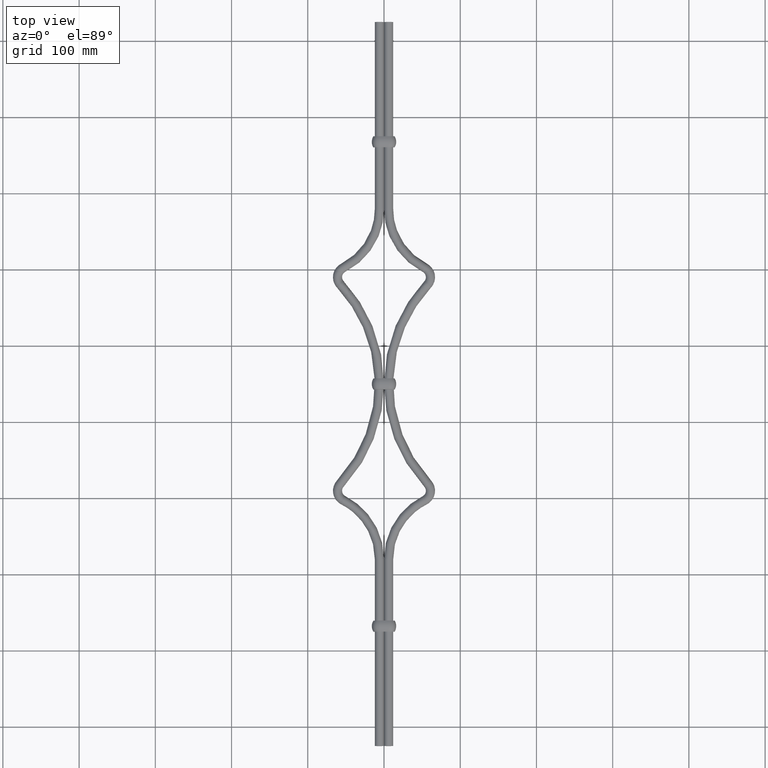
[diagram: clean part render]
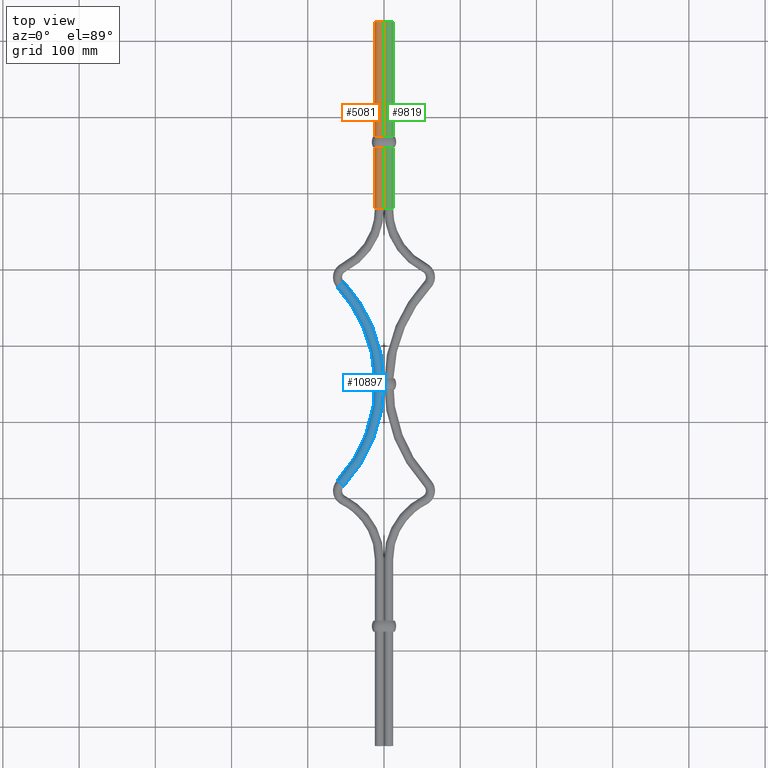
[diagram: same view with three faces highlighted in distinct colors, each labeled with its STEP entity id]
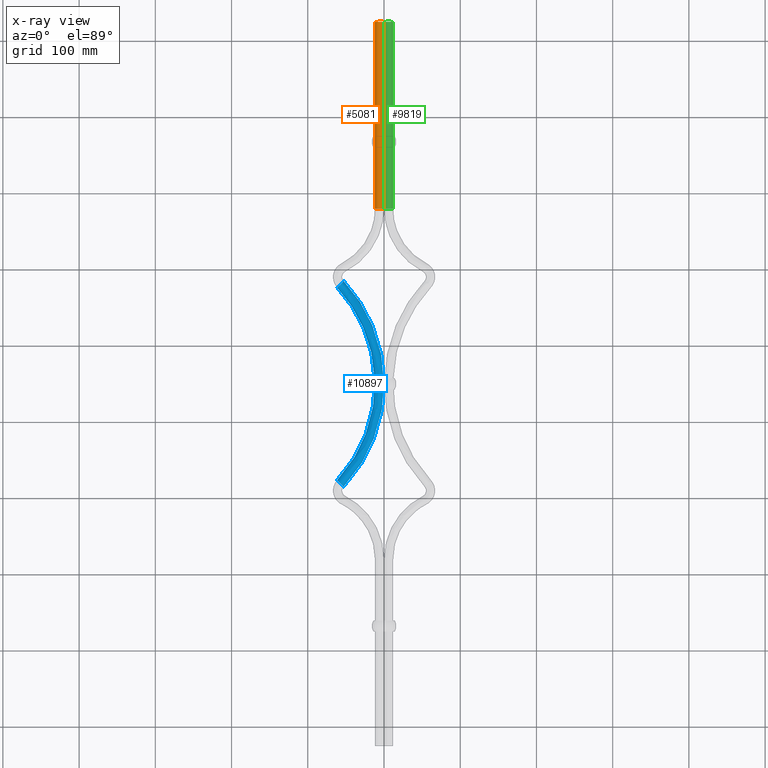
[diagram: x-ray of the same camera — body ghosted, the three highlighted faces saturated]
A machine part, top view with three faces highlighted in distinct colors.
The next image is the same camera in x-ray (body ghosted, the three faces saturated) — at least one of them is partly hidden behind the body in this view.
Their STEP definitions:

[orange] entity #5081 — the highlighted face is a freeform B-spline surface patch.
#69 = CARTESIAN_POINT ( 'NONE',  ( -0.8018740826948004300, 924.9999999999995500, 3.002667020528368500 ) ) ;
#132 = CARTESIAN_POINT ( 'NONE',  ( -5.603826490563096600, 924.9999999999998900, 6.000000000121199100 ) ) ;
#634 = CARTESIAN_POINT ( 'NONE',  ( -11.99974757099841900, 679.9632569764643200, 7.111164825746169200E-016 ) ) ;
#679 = CARTESIAN_POINT ( 'NONE',  ( -0.0002524290098535008600, 925.0367430243752600, 2.367159692549194200E-017 ) ) ;
#901 = CARTESIAN_POINT ( 'NONE',  ( -0.0002524290130245753200, 680.0367430251923200, 11.99999999999999800 ) ) ;
#1113 = B_SPLINE_CURVE_WITH_KNOTS ( 'NONE', 3,
 ( #2579, #2695, #5343, #14458, #6650, #15759, #7962, #69, #9272, #1420, #10581, #2752, #11886, #4089, #13198, #5398, #14519, #6703, #15810, #8022, #132, #9328 ),
 .UNSPECIFIED., .F., .F.,
 ( 4, 2, 2, 2, 2, 2, 2, 2, 2, 2, 4 ),
 ( 0.009381297829866961900, 0.01055294879094569400, 0.01172459975202442800, 0.01231042523256379400, 0.01289625071310316100, 0.01406790167418189500, 0.01523955263526062900, 0.01582537811579999600, 0.01641120359633935900, 0.01758285455741809300, 0.01875450551849682700 ),
 .UNSPECIFIED. ) ;
#1420 = CARTESIAN_POINT ( 'NONE',  ( -1.228277759380461000, 925.0000000000004500, 3.658066584770408400 ) ) ;
#2023 = CARTESIAN_POINT ( 'NONE',  ( -0.0002524290098535007000, 925.0367430243752600, 11.99999999999999800 ) ) ;
#2245 = CARTESIAN_POINT ( 'NONE',  ( -11.99974757099841900, 679.9632569764643200, 7.111164825746169200E-016 ) ) ;
#2488 = CARTESIAN_POINT ( 'NONE',  ( -6.000000001837878300, 925.0000000000000000, 6.000000000000000000 ) ) ;
#2579 = CARTESIAN_POINT ( 'NONE',  ( -0.0002524290098539763900, 924.9999999999994300, 2.367159692549194200E-017 ) ) ;
#2695 = CARTESIAN_POINT ( 'NONE',  ( -0.0002524290098539819700, 924.9999999999995500, 0.3910925129396046800 ) ) ;
#2752 = CARTESIAN_POINT ( 'NONE',  ( -2.035580899030228900, 925.0000000000001100, 4.520919682191352400 ) ) ;
#3231 = EDGE_CURVE ( 'NONE', #5649, #10593, #14196, .T. ) ;
#3338 = CARTESIAN_POINT ( 'NONE',  ( -11.99974757099505100, 924.9632569756472500, 11.99999999999999800 ) ) ;
#3467 = CARTESIAN_POINT ( 'NONE',  ( -0.0002524290098539763900, 924.9999999999994300, 2.367159692549194200E-017 ) ) ;
#3577 = CARTESIAN_POINT ( 'NONE',  ( -0.0002524290130245753700, 680.0367430251923200, 2.367159692549194200E-017 ) ) ;
#3752 = EDGE_LOOP ( 'NONE', ( #10199, #11716, #3901, #7473, #6541 ) ) ;
#3788 =( BOUNDED_CURVE ( )  B_SPLINE_CURVE ( 3, ( #9012, #16772, #10314, #2488 ),
 .UNSPECIFIED., .F., .T. ) 
 B_SPLINE_CURVE_WITH_KNOTS ( ( 4, 4 ),
 ( 0.5000000000000000000, 0.7499999999617614800 ),
 .UNSPECIFIED. ) 
 CURVE ( )  GEOMETRIC_REPRESENTATION_ITEM ( )  RATIONAL_B_SPLINE_CURVE ( ( 1.000000000000000000, 0.6666666667176514000, 0.5000000000509847700, 0.5000000000000000000 ) ) 
 REPRESENTATION_ITEM ( '' )  );
#3901 = ORIENTED_EDGE ( 'NONE', *, *, #12361, .T. ) ;
#4089 = CARTESIAN_POINT ( 'NONE',  ( -2.826105504082181900, 924.9999999999992000, 5.095458613719340900 ) ) ;
#4679 = CARTESIAN_POINT ( 'NONE',  ( -11.99974757099524700, 924.9632569756471400, 7.111164825746169200E-016 ) ) ;
#4725 = CARTESIAN_POINT ( 'NONE',  ( -0.0002524290130245753700, 680.0367430251923200, 2.367159692549194200E-017 ) ) ;
#5081 = ADVANCED_FACE ( 'NONE', ( #13244 ), #16796, .F. ) ;
#5214 = VERTEX_POINT ( 'NONE', #3467 ) ;
#5343 = CARTESIAN_POINT ( 'NONE',  ( -0.03935417340218781700, 925.0000000000003400, 0.7883069095250839800 ) ) ;
#5398 = CARTESIAN_POINT ( 'NONE',  ( -3.340657888501804800, 924.9999999999997700, 5.382006132571249600 ) ) ;
#5454 = VERTEX_POINT ( 'NONE', #16535 ) ;
#5566 = CARTESIAN_POINT ( 'NONE',  ( -0.0002524290130245753700, 680.0367430251923200, 2.367159692549194200E-017 ) ) ;
#5649 = VERTEX_POINT ( 'NONE', #14790 ) ;
#6541 = ORIENTED_EDGE ( 'NONE', *, *, #13419, .F. ) ;
#6650 = CARTESIAN_POINT ( 'NONE',  ( -0.3059250607655726900, 924.9999999999996600, 1.931086156765894600 ) ) ;
#6703 = CARTESIAN_POINT ( 'NONE',  ( -4.065424889978992900, 925.0000000000002300, 5.693138748843133500 ) ) ;
#6863 = DIRECTION ( 'NONE',  ( 1.294316128202522400E-014, 1.000000000000000000, 0.0000000000000000000 ) ) ;
#7186 = DIRECTION ( 'NONE',  ( 1.294316128202522400E-014, 1.000000000000000000, 0.0000000000000000000 ) ) ;
#7473 = ORIENTED_EDGE ( 'NONE', *, *, #15148, .T. ) ;
#7793 = LINE ( 'NONE', #5566, #14324 ) ;
#7962 = CARTESIAN_POINT ( 'NONE',  ( -0.6161440759821570400, 924.9999999999994300, 2.655268779871856800 ) ) ;
#8022 = CARTESIAN_POINT ( 'NONE',  ( -5.207383170953133500, 924.9999999999997700, 5.960297361204097500 ) ) ;
#8032 = LINE ( 'NONE', #634, #14954 ) ;
#8752 = CARTESIAN_POINT ( 'NONE',  ( -11.99974757099524700, 924.9632569756471400, 7.111164825746169200E-016 ) ) ;
#9012 = CARTESIAN_POINT ( 'NONE',  ( -11.99974757099524700, 924.9632569756471400, 7.111164825746169200E-016 ) ) ;
#9272 = CARTESIAN_POINT ( 'NONE',  ( -0.9026694543128579400, 925.0000000000003400, 3.170679733321863000 ) ) ;
#9328 = CARTESIAN_POINT ( 'NONE',  ( -6.000000001837878300, 925.0000000000000000, 6.000000000000000000 ) ) ;
#9854 = CARTESIAN_POINT ( 'NONE',  ( -0.0002524290130245752700, 680.0367430251924400, 11.99999999999999800 ) ) ;
#10072 = CARTESIAN_POINT ( 'NONE',  ( -11.99974757099822200, 679.9632569764643200, 11.99999999999999800 ) ) ;
#10199 = ORIENTED_EDGE ( 'NONE', *, *, #10833, .F. ) ;
#10314 = CARTESIAN_POINT ( 'NONE',  ( -9.999831714813334200, 924.9755046504302500, 5.999999998776367200 ) ) ;
#10581 = CARTESIAN_POINT ( 'NONE',  ( -1.476086382926634900, 924.9999999999998900, 3.960951846602040100 ) ) ;
#10593 = VERTEX_POINT ( 'NONE', #4725 ) ;
#10833 = EDGE_CURVE ( 'NONE', #5649, #13234, #8032, .T. ) ;
#11165 = CARTESIAN_POINT ( 'NONE',  ( -11.99974757099822200, 679.9632569764643200, 11.99999999999999800 ) ) ;
#11716 = ORIENTED_EDGE ( 'NONE', *, *, #3231, .T. ) ;
#11886 = CARTESIAN_POINT ( 'NONE',  ( -2.339094564643061000, 924.9999999999993200, 4.769617736019934100 ) ) ;
#12361 = EDGE_CURVE ( 'NONE', #10593, #5214, #7793, .T. ) ;
#12480 = CARTESIAN_POINT ( 'NONE',  ( -11.99974757099841900, 679.9632569764643200, 7.111164825746169200E-016 ) ) ;
#13198 = CARTESIAN_POINT ( 'NONE',  ( -2.993904812738335000, 924.9999999999998900, 5.196279139165371300 ) ) ;
#13234 = VERTEX_POINT ( 'NONE', #8752 ) ;
#13244 = FACE_OUTER_BOUND ( 'NONE', #3752, .T. ) ;
#13419 = EDGE_CURVE ( 'NONE', #13234, #5454, #3788, .T. ) ;
#14196 =( BOUNDED_CURVE ( )  B_SPLINE_CURVE ( 3, ( #2245, #10072, #901, #3577 ),
 .UNSPECIFIED., .F., .F. ) 
 B_SPLINE_CURVE_WITH_KNOTS ( ( 4, 4 ),
 ( 0.5000000000000000000, 1.000000000000000000 ),
 .UNSPECIFIED. ) 
 CURVE ( )  GEOMETRIC_REPRESENTATION_ITEM ( )  RATIONAL_B_SPLINE_CURVE ( ( 1.000000000000000000, 0.3333333333333333700, 0.3333333333333333700, 1.000000000000000000 ) ) 
 REPRESENTATION_ITEM ( '' )  );
#14324 = VECTOR ( 'NONE', #6863, 1000.000000000000000 ) ;
#14458 = CARTESIAN_POINT ( 'NONE',  ( -0.1926209828681821600, 925.0000000000000000, 1.557314091320363100 ) ) ;
#14519 = CARTESIAN_POINT ( 'NONE',  ( -3.520413067001568300, 924.9999999999997700, 5.467157617879641900 ) ) ;
#14790 = CARTESIAN_POINT ( 'NONE',  ( -11.99974757099841900, 679.9632569764643200, 7.111164825746169200E-016 ) ) ;
#14954 = VECTOR ( 'NONE', #7186, 1000.000000000000000 ) ;
#15034 = CARTESIAN_POINT ( 'NONE',  ( -0.0002524290130245753700, 680.0367430251923200, 2.367159692549194200E-017 ) ) ;
#15148 = EDGE_CURVE ( 'NONE', #5214, #5454, #1113, .T. ) ;
#15759 = CARTESIAN_POINT ( 'NONE',  ( -0.5312070166993970700, 925.0000000000001100, 2.475553369981862200 ) ) ;
#15810 = CARTESIAN_POINT ( 'NONE',  ( -4.439204968891394800, 924.9999999999998900, 5.806647295631781200 ) ) ;
#16535 = CARTESIAN_POINT ( 'NONE',  ( -6.000000001837878300, 925.0000000000000000, 6.000000000000000000 ) ) ;
#16772 = CARTESIAN_POINT ( 'NONE',  ( -11.99974757099519700, 924.9632569756473700, 2.999999999311707500 ) ) ;
#16796 =( BOUNDED_SURFACE ( )  B_SPLINE_SURFACE ( 3, 1, ( 
 ( #15034, #679 ),
 ( #9854, #2023 ),
 ( #11165, #3338 ),
 ( #12480, #4679 ) ),
 .UNSPECIFIED., .F., .F., .F. ) 
 B_SPLINE_SURFACE_WITH_KNOTS ( ( 4, 4 ),
 ( 2, 2 ),
 ( 0.0000000000000000000, 0.5000000000000000000 ),
 ( 0.0000000000000000000, 1.000000000000000000 ),
 .UNSPECIFIED. ) 
 GEOMETRIC_REPRESENTATION_ITEM ( )  RATIONAL_B_SPLINE_SURFACE ( (
 ( 1.000000000000000000, 1.000000000000000000),
 ( 0.3333333333333333700, 0.3333333333333333700),
 ( 0.3333333333333333700, 0.3333333333333333700),
 ( 1.000000000000000000, 1.000000000000000000) ) ) 
 REPRESENTATION_ITEM ( '' )  SURFACE ( )  );

[blue] entity #10897 — the highlighted face is a freeform B-spline surface patch.
#66 = VERTEX_POINT ( 'NONE', #7697 ) ;
#593 = CARTESIAN_POINT ( 'NONE',  ( -61.51209363841103100, 323.6071027101809800, 8.527070651964222600E-016 ) ) ;
#808 = CARTESIAN_POINT ( 'NONE',  ( 0.7264480903153978100, 469.2528909035907500, -2.098366060659508300E-016 ) ) ;
#861 = CARTESIAN_POINT ( 'NONE',  ( -44.64045133958273900, 575.8333569275644100, 11.99999999999999800 ) ) ;
#870 = ORIENTED_EDGE ( 'NONE', *, *, #3465, .F. ) ;
#920 = CARTESIAN_POINT ( 'NONE',  ( -53.36329301263781800, 332.4079988166307700, 8.804558837373509700E-016 ) ) ;
#994 = CARTESIAN_POINT ( 'NONE',  ( -11.97957841236076400, 426.7468950949819400, -11.99999999999999500 ) ) ;
#1048 = CARTESIAN_POINT ( 'NONE',  ( -26.79080804273676700, 552.2787874388691300, -11.99999999999999600 ) ) ;
#1214 = CARTESIAN_POINT ( 'NONE',  ( -8.442573845707416400, 512.6095959258960900, 1.493061584562548500E-016 ) ) ;
#2142 = CARTESIAN_POINT ( 'NONE',  ( -26.37292626719997600, 551.8261421891685400, -5.807620071598787500E-017 ) ) ;
#2201 = CARTESIAN_POINT ( 'NONE',  ( -61.51209363841105900, 323.6071027101810400, 11.99999999999999800 ) ) ;
#2264 = CARTESIAN_POINT ( 'NONE',  ( -21.27770817372944000, 387.6578271474177200, 1.014396028284849700E-015 ) ) ;
#2324 = CARTESIAN_POINT ( 'NONE',  ( -19.84558817756086700, 508.6999772347203900, -11.99999999999999800 ) ) ;
#2377 = CARTESIAN_POINT ( 'NONE',  ( -52.76431385044410400, 584.6073192840664200, -11.99999999999999800 ) ) ;
#2546 = CARTESIAN_POINT ( 'NONE',  ( -43.79093532513777400, 574.9158596752388300, -2.546810199468553700E-016 ) ) ;
#2573 = VERTEX_POINT ( 'NONE', #14645 ) ;
#2614 = B_SPLINE_CURVE_WITH_KNOTS ( 'NONE', 3,
 ( #11634, #10317, #15555, #7750, #16830, #9071, #1214, #10375, #2546, #11686 ),
 .UNSPECIFIED., .F., .F.,
 ( 4, 1, 1, 1, 1, 1, 1, 4 ),
 ( 0.0000000000000000000, 0.1318829667767272600, 0.2714696696032917700, 0.4162189895839139600, 0.5629400453226535200, 0.7149689085676744800, 0.8616493475476620900, 1.000000000000000000 ),
 .UNSPECIFIED. ) ;
#3252 = CARTESIAN_POINT ( 'NONE',  ( -37.89342209827678700, 352.7839930978241200, 6.658742474111414600E-016 ) ) ;
#3465 = EDGE_CURVE ( 'NONE', #5816, #66, #11820, .T. ) ;
#3480 = CARTESIAN_POINT ( 'NONE',  ( -52.76431385044418900, 584.6073192840663100, -2.546810199468553700E-016 ) ) ;
#3505 = ORIENTED_EDGE ( 'NONE', *, *, #12691, .F. ) ;
#3541 = CARTESIAN_POINT ( 'NONE',  ( -37.69453535950715000, 352.9993958240679600, 11.99999999999999800 ) ) ;
#3571 = CARTESIAN_POINT ( 'NONE',  ( -61.51209363841103100, 323.6071027101809800, 8.527070651964222600E-016 ) ) ;
#3597 = CARTESIAN_POINT ( 'NONE',  ( -11.32122275055797700, 468.0799790530458600, 9.446246855534020000E-016 ) ) ;
#3657 = CARTESIAN_POINT ( 'NONE',  ( -52.53871511310453700, 566.7014376809919400, -11.99999999999999800 ) ) ;
#3719 = CARTESIAN_POINT ( 'NONE',  ( -44.21044338438537800, 324.6310617657428600, -1.456678042497336600E-016 ) ) ;
#4483 = ORIENTED_EDGE ( 'NONE', *, *, #7183, .T. ) ;
#4585 = CARTESIAN_POINT ( 'NONE',  ( -11.96796888191325800, 426.7682406384950600, 7.434499653221958300E-016 ) ) ;
#4803 = CARTESIAN_POINT ( 'NONE',  ( -45.02058306495653300, 323.7560918790249500, 11.99999999999999800 ) ) ;
#4860 = CARTESIAN_POINT ( 'NONE',  ( -11.95635935146578400, 426.7895861820080700, 11.99999999999999500 ) ) ;
#4920 = CARTESIAN_POINT ( 'NONE',  ( -36.81112897796420900, 545.6727808818102400, 7.928642802028406400E-016 ) ) ;
#4979 = CARTESIAN_POINT ( 'NONE',  ( -52.76431385044416800, 315.3926807159342000, -11.99999999999999800 ) ) ;
#4990 = CARTESIAN_POINT ( 'NONE',  ( -52.76431385044418900, 584.6073192840663100, -2.546810199468553700E-016 ) ) ;
#5036 = CARTESIAN_POINT ( 'NONE',  ( -9.904187492016657000, 383.5850978585266400, -2.796079487945893200E-016 ) ) ;
#5816 = VERTEX_POINT ( 'NONE', #3571 ) ;
#5827 = CARTESIAN_POINT ( 'NONE',  ( -52.76431385044421100, 315.3926807159342600, -1.179189857088026500E-016 ) ) ;
#5895 = CARTESIAN_POINT ( 'NONE',  ( -19.90427847964116700, 508.7658679843466400, 5.854819210369115600E-016 ) ) ;
#6108 = CARTESIAN_POINT ( 'NONE',  ( -10.01580799462189300, 383.4600077647600100, 11.99999999999999600 ) ) ;
#6171 = CARTESIAN_POINT ( 'NONE',  ( -19.96296878172156000, 508.8317587339724400, 11.99999999999999800 ) ) ;
#6220 = CARTESIAN_POINT ( 'NONE',  ( -61.51209363841098800, 576.3928972898194200, 9.894690994338144600E-016 ) ) ;
#6277 = CARTESIAN_POINT ( 'NONE',  ( -27.92686689059231100, 346.0969892963714800, -11.99999999999999800 ) ) ;
#6334 = CARTESIAN_POINT ( 'NONE',  ( 0.7264480903153978100, 469.2528909035907500, -2.098366060659508300E-016 ) ) ;
#6616 = CARTESIAN_POINT ( 'NONE',  ( -52.76431385044410400, 584.6073192840664200, 11.99999999999999800 ) ) ;
#7183 = EDGE_CURVE ( 'NONE', #2573, #8695, #2614, .T. ) ;
#7192 = CARTESIAN_POINT ( 'NONE',  ( -52.96347312032709500, 567.1601863071548500, 9.894690994338144600E-016 ) ) ;
#7212 =( BOUNDED_CURVE ( )  B_SPLINE_CURVE ( 3, ( #5827, #13623, #16220, #8442 ),
 .UNSPECIFIED., .F., .T. ) 
 B_SPLINE_CURVE_WITH_KNOTS ( ( 4, 4 ),
 ( 0.0000000000000000000, 0.5000000000000000000 ),
 .UNSPECIFIED. ) 
 CURVE ( )  GEOMETRIC_REPRESENTATION_ITEM ( )  RATIONAL_B_SPLINE_CURVE ( ( 1.000000000000000000, 0.3333333333333333700, 0.3333333333333333700, 1.000000000000000000 ) ) 
 REPRESENTATION_ITEM ( '' )  );
#7241 = CARTESIAN_POINT ( 'NONE',  ( -44.21044338438537800, 324.6310617657428600, -1.456678042497336600E-016 ) ) ;
#7360 = CARTESIAN_POINT ( 'NONE',  ( -27.52909341305311800, 346.5277947488592100, 6.891383207554926800E-017 ) ) ;
#7413 = CARTESIAN_POINT ( 'NONE',  ( 0.7489526308204539400, 469.2095557150217400, 12.00000000000000400 ) ) ;
#7471 = CARTESIAN_POINT ( 'NONE',  ( -53.38823112754960200, 567.6189349333177500, 11.99999999999999800 ) ) ;
#7523 = CARTESIAN_POINT ( 'NONE',  ( -52.95822317235221300, 332.8454837599896900, -11.99999999999999800 ) ) ;
#7590 = CARTESIAN_POINT ( 'NONE',  ( 0.01487048980433866900, 425.2228951193138800, -11.99999999999999500 ) ) ;
#7637 = CARTESIAN_POINT ( 'NONE',  ( -26.37292626719997600, 551.8261421891685400, -5.807620071598787500E-017 ) ) ;
#7697 = CARTESIAN_POINT ( 'NONE',  ( -61.51209363841098800, 576.3928972898194200, 9.894690994338144600E-016 ) ) ;
#7750 = CARTESIAN_POINT ( 'NONE',  ( -9.904187492016657000, 383.5850978585266400, -2.796079487945893200E-016 ) ) ;
#8442 = CARTESIAN_POINT ( 'NONE',  ( -61.51209363841103100, 323.6071027101809800, 8.527070651964222600E-016 ) ) ;
#8662 = CARTESIAN_POINT ( 'NONE',  ( 0.03808955069929369900, 425.2655862063400000, -8.661885838623813200E-018 ) ) ;
#8695 = VERTEX_POINT ( 'NONE', #4990 ) ;
#8720 = CARTESIAN_POINT ( 'NONE',  ( -25.95504449166316300, 551.3734969394684000, 11.99999999999999600 ) ) ;
#8785 = CARTESIAN_POINT ( 'NONE',  ( -61.51209363841105900, 323.6071027101809800, 8.804558837373509700E-016 ) ) ;
#8838 = CARTESIAN_POINT ( 'NONE',  ( -21.22189792242680500, 387.7203721943009800, -11.99999999999999600 ) ) ;
#8893 = CARTESIAN_POINT ( 'NONE',  ( -8.325193241546749300, 512.4778144266439300, -11.99999999999999800 ) ) ;
#8954 = CARTESIAN_POINT ( 'NONE',  ( -52.76431385044418900, 584.6073192840663100, -2.546810199468553700E-016 ) ) ;
#9071 = CARTESIAN_POINT ( 'NONE',  ( 0.7264480903153978100, 469.2528909035907500, -2.098366060659508300E-016 ) ) ;
#9507 = EDGE_LOOP ( 'NONE', ( #870, #3505, #4483, #11404 ) ) ;
#9980 = CARTESIAN_POINT ( 'NONE',  ( -8.442573845707416400, 512.6095959258960900, 1.493061584562548500E-016 ) ) ;
#10035 = CARTESIAN_POINT ( 'NONE',  ( -52.76431385044410400, 584.6073192840664200, 11.99999999999999800 ) ) ;
#10088 = CARTESIAN_POINT ( 'NONE',  ( -37.89342209827678700, 352.7839930978241200, 6.658742474111414600E-016 ) ) ;
#10142 = CARTESIAN_POINT ( 'NONE',  ( -11.33247502081054800, 468.1016466473304300, -12.00000000000000400 ) ) ;
#10206 = CARTESIAN_POINT ( 'NONE',  ( -42.94141931069263800, 573.9983624229132600, -11.99999999999999800 ) ) ;
#10279 = EDGE_CURVE ( 'NONE', #66, #8695, #14239, .T. ) ;
#10317 = CARTESIAN_POINT ( 'NONE',  ( -44.21044338438537800, 324.6310617657428600, -1.456678042497336600E-016 ) ) ;
#10375 = CARTESIAN_POINT ( 'NONE',  ( -26.37292626719997600, 551.8261421891685400, -5.807620071598787500E-017 ) ) ;
#10897 = ADVANCED_FACE ( 'NONE', ( #14150 ), #14959, .F. ) ;
#11081 = CARTESIAN_POINT ( 'NONE',  ( -53.36329301263781800, 332.4079988166307700, 8.804558837373509700E-016 ) ) ;
#11291 = CARTESIAN_POINT ( 'NONE',  ( -43.79093532513777400, 574.9158596752388300, -2.546810199468553700E-016 ) ) ;
#11346 = CARTESIAN_POINT ( 'NONE',  ( -53.76836285292343100, 331.9705138732717800, 11.99999999999999800 ) ) ;
#11402 = CARTESIAN_POINT ( 'NONE',  ( -11.96796888191325600, 426.7682406384950600, 7.434499653221958300E-016 ) ) ;
#11404 = ORIENTED_EDGE ( 'NONE', *, *, #10279, .F. ) ;
#11464 = CARTESIAN_POINT ( 'NONE',  ( -37.02006986573260100, 545.8991035066603700, -11.99999999999999600 ) ) ;
#11522 = CARTESIAN_POINT ( 'NONE',  ( -52.76431385044422500, 315.3926807159342000, -1.456678042497336600E-016 ) ) ;
#11634 = CARTESIAN_POINT ( 'NONE',  ( -52.76431385044421100, 315.3926807159342600, -1.179189857088026500E-016 ) ) ;
#11686 = CARTESIAN_POINT ( 'NONE',  ( -52.76431385044418900, 584.6073192840663100, -2.546810199468553700E-016 ) ) ;
#11820 = B_SPLINE_CURVE_WITH_KNOTS ( 'NONE', 3,
 ( #593, #11081, #3252, #12379, #4585, #13693, #5895, #14996, #7192, #16285 ),
 .UNSPECIFIED., .F., .F.,
 ( 4, 1, 1, 1, 1, 1, 1, 4 ),
 ( 0.0000000000000000000, 0.1318829667767272600, 0.2714696696032917700, 0.4162189895839139600, 0.5629400453226535200, 0.7149689085676744800, 0.8616493475476620900, 1.000000000000000000 ),
 .UNSPECIFIED. ) ;
#12379 = CARTESIAN_POINT ( 'NONE',  ( -21.27770817372944000, 387.6578271474177200, 1.014396028284849700E-015 ) ) ;
#12597 = CARTESIAN_POINT ( 'NONE',  ( -52.76431385044416800, 315.3926807159342000, 11.99999999999999800 ) ) ;
#12660 = CARTESIAN_POINT ( 'NONE',  ( -21.33351842503211100, 387.5952821005344000, 11.99999999999999600 ) ) ;
#12691 = EDGE_CURVE ( 'NONE', #2573, #5816, #7212, .T. ) ;
#12713 = CARTESIAN_POINT ( 'NONE',  ( -19.90427847964116700, 508.7658679843466400, 5.854819210369115600E-016 ) ) ;
#12771 = CARTESIAN_POINT ( 'NONE',  ( -61.51209363841095300, 576.3928972898195300, -11.99999999999999800 ) ) ;
#12824 = CARTESIAN_POINT ( 'NONE',  ( -27.52909341305311800, 346.5277947488592100, 6.891383207554926800E-017 ) ) ;
#12930 = CARTESIAN_POINT ( 'NONE',  ( -61.51209363841097400, 576.3928972898194200, 11.99999999999999800 ) ) ;
#13109 = CARTESIAN_POINT ( 'NONE',  ( -61.51209363841098800, 576.3928972898194200, 9.894690994338144600E-016 ) ) ;
#13623 = CARTESIAN_POINT ( 'NONE',  ( -52.76431385044418200, 315.3926807159342000, 11.99999999999999800 ) ) ;
#13693 = CARTESIAN_POINT ( 'NONE',  ( -11.32122275055797700, 468.0799790530458600, 9.446246855534020000E-016 ) ) ;
#13910 = CARTESIAN_POINT ( 'NONE',  ( -27.13131993551387200, 346.9586002013469400, 11.99999999999999800 ) ) ;
#13965 = CARTESIAN_POINT ( 'NONE',  ( -11.30997048030553400, 468.0583114587614100, 12.00000000000000400 ) ) ;
#14021 = CARTESIAN_POINT ( 'NONE',  ( -52.96347312032709500, 567.1601863071548500, 9.894690994338144600E-016 ) ) ;
#14087 = CARTESIAN_POINT ( 'NONE',  ( -43.40030370381408900, 325.5060316524608200, -11.99999999999999800 ) ) ;
#14145 = CARTESIAN_POINT ( 'NONE',  ( 0.03808955069929369900, 425.2655862063400000, -8.661885838623813200E-018 ) ) ;
#14150 = FACE_OUTER_BOUND ( 'NONE', #9507, .T. ) ;
#14239 =( BOUNDED_CURVE ( )  B_SPLINE_CURVE ( 3, ( #13109, #12930, #6616, #15722 ),
 .UNSPECIFIED., .F., .F. ) 
 B_SPLINE_CURVE_WITH_KNOTS ( ( 4, 4 ),
 ( 0.5000000000000000000, 1.000000000000000000 ),
 .UNSPECIFIED. ) 
 CURVE ( )  GEOMETRIC_REPRESENTATION_ITEM ( )  RATIONAL_B_SPLINE_CURVE ( ( 1.000000000000000000, 0.3333333333333333700, 0.3333333333333333700, 1.000000000000000000 ) ) 
 REPRESENTATION_ITEM ( '' )  );
#14645 = CARTESIAN_POINT ( 'NONE',  ( -52.76431385044421100, 315.3926807159342600, -1.179189857088026500E-016 ) ) ;
#14959 =( BOUNDED_SURFACE ( )  B_SPLINE_SURFACE ( 3, 3, ( 
 ( #15160, #7241, #7360, #16438, #8662, #808, #9980, #2142, #11291, #3480 ),
 ( #12597, #4803, #13910, #6108, #15218, #7413, #16502, #8720, #861, #10035 ),
 ( #2201, #11346, #3541, #12660, #4860, #13965, #6171, #15273, #7471, #16555 ),
 ( #8785, #920, #10088, #2264, #11402, #3597, #12713, #4920, #14021, #6220 ),
 ( #15333, #7523, #16613, #8838, #994, #10142, #2324, #11464, #3657, #12771 ),
 ( #4979, #14087, #6277, #15387, #7590, #16664, #8893, #1048, #10206, #2377 ),
 ( #11522, #3719, #12824, #5036, #14145, #6334, #15445, #7637, #16723, #8954 ) ),
 .UNSPECIFIED., .T., .F., .F. ) 
 B_SPLINE_SURFACE_WITH_KNOTS ( ( 4, 3, 4 ),
 ( 4, 1, 1, 1, 1, 1, 1, 4 ),
 ( 0.0000000000000000000, 0.5000000000000000000, 1.000000000000000000 ),
 ( 0.0000000000000000000, 0.1318829667767272600, 0.2714696696032917700, 0.4162189895839139600, 0.5629400453226535200, 0.7149689085676744800, 0.8616493475476620900, 1.000000000000000000 ),
 .UNSPECIFIED. ) 
 GEOMETRIC_REPRESENTATION_ITEM ( )  RATIONAL_B_SPLINE_SURFACE ( (
 ( 1.000000000000000000, 1.000000000000000000, 1.000000000000000000, 1.000000000000000000, 0.9999999999999997800, 0.9999999999999997800, 1.000000000000000000, 1.000000000000000200, 1.000000000000000000, 1.000000000000000000),
 ( 0.3333333333333333700, 0.3333333333333333700, 0.3333333333333333700, 0.3333333333333333700, 0.3333333333333333100, 0.3333333333333333100, 0.3333333333333333700, 0.3333333333333334300, 0.3333333333333333700, 0.3333333333333333700),
 ( 0.3333333333333333700, 0.3333333333333333700, 0.3333333333333333700, 0.3333333333333333700, 0.3333333333333333100, 0.3333333333333333100, 0.3333333333333333700, 0.3333333333333334300, 0.3333333333333333700, 0.3333333333333333700),
 ( 1.000000000000000000, 1.000000000000000000, 1.000000000000000000, 1.000000000000000000, 0.9999999999999997800, 0.9999999999999997800, 1.000000000000000000, 1.000000000000000200, 1.000000000000000000, 1.000000000000000000),
 ( 0.3333333333333333700, 0.3333333333333333700, 0.3333333333333333700, 0.3333333333333333700, 0.3333333333333333100, 0.3333333333333333100, 0.3333333333333333700, 0.3333333333333334300, 0.3333333333333333700, 0.3333333333333333700),
 ( 0.3333333333333333700, 0.3333333333333333700, 0.3333333333333333700, 0.3333333333333333700, 0.3333333333333333100, 0.3333333333333333100, 0.3333333333333333700, 0.3333333333333334300, 0.3333333333333333700, 0.3333333333333333700),
 ( 1.000000000000000000, 1.000000000000000000, 1.000000000000000000, 1.000000000000000000, 0.9999999999999997800, 0.9999999999999997800, 1.000000000000000000, 1.000000000000000200, 1.000000000000000000, 1.000000000000000000) ) ) 
 REPRESENTATION_ITEM ( '' )  SURFACE ( )  );
#14996 = CARTESIAN_POINT ( 'NONE',  ( -36.81112897796420900, 545.6727808818102400, 7.928642802028406400E-016 ) ) ;
#15160 = CARTESIAN_POINT ( 'NONE',  ( -52.76431385044422500, 315.3926807159342000, -1.456678042497336600E-016 ) ) ;
#15218 = CARTESIAN_POINT ( 'NONE',  ( 0.06130861159429525100, 425.3082772933659600, 11.99999999999999500 ) ) ;
#15273 = CARTESIAN_POINT ( 'NONE',  ( -36.60218809019579600, 545.4464582569598900, 11.99999999999999600 ) ) ;
#15333 = CARTESIAN_POINT ( 'NONE',  ( -61.51209363841105900, 323.6071027101810400, -11.99999999999999800 ) ) ;
#15387 = CARTESIAN_POINT ( 'NONE',  ( -9.792566989411279000, 383.7101879522933800, -11.99999999999999600 ) ) ;
#15445 = CARTESIAN_POINT ( 'NONE',  ( -8.442573845707416400, 512.6095959258960900, 1.493061584562548500E-016 ) ) ;
#15555 = CARTESIAN_POINT ( 'NONE',  ( -27.52909341305311800, 346.5277947488592100, 6.891383207554926800E-017 ) ) ;
#15722 = CARTESIAN_POINT ( 'NONE',  ( -52.76431385044418900, 584.6073192840663100, -2.546810199468553700E-016 ) ) ;
#16220 = CARTESIAN_POINT ( 'NONE',  ( -61.51209363841105900, 323.6071027101809800, 11.99999999999999800 ) ) ;
#16285 = CARTESIAN_POINT ( 'NONE',  ( -61.51209363841098800, 576.3928972898194200, 9.894690994338144600E-016 ) ) ;
#16438 = CARTESIAN_POINT ( 'NONE',  ( -9.904187492016657000, 383.5850978585266400, -2.796079487945893200E-016 ) ) ;
#16502 = CARTESIAN_POINT ( 'NONE',  ( -8.559954449868129700, 512.7413774251480200, 11.99999999999999800 ) ) ;
#16555 = CARTESIAN_POINT ( 'NONE',  ( -61.51209363841095300, 576.3928972898195300, 11.99999999999999800 ) ) ;
#16613 = CARTESIAN_POINT ( 'NONE',  ( -38.09230883704637400, 352.5685903715802900, -11.99999999999999800 ) ) ;
#16664 = CARTESIAN_POINT ( 'NONE',  ( 0.7039435498104242800, 469.2962260921596000, -12.00000000000000400 ) ) ;
#16723 = CARTESIAN_POINT ( 'NONE',  ( -43.79093532513777400, 574.9158596752388300, -2.546810199468553700E-016 ) ) ;
#16830 = CARTESIAN_POINT ( 'NONE',  ( 0.03808955069929369900, 425.2655862063400000, -8.661885838623813200E-018 ) ) ;

[green] entity #9819 — the highlighted face is a freeform B-spline surface patch.
#451 = CARTESIAN_POINT ( 'NONE',  ( 4.638304166626253000, 924.9999999999995500, 5.846696402839611100 ) ) ;
#968 = DIRECTION ( 'NONE',  ( -1.294316128202522400E-014, 1.000000000000000000, 0.0000000000000000000 ) ) ;
#1270 = EDGE_CURVE ( 'NONE', #9534, #7239, #5861, .T. ) ;
#1283 = CARTESIAN_POINT ( 'NONE',  ( 0.0002524290130245752700, 680.0367430251924400, 11.99999999999999800 ) ) ;
#1503 = EDGE_CURVE ( 'NONE', #16194, #7239, #13057, .T. ) ;
#1802 = CARTESIAN_POINT ( 'NONE',  ( 0.3158201381228772400, 925.0000000000001100, 1.930266501346925100 ) ) ;
#2024 = CARTESIAN_POINT ( 'NONE',  ( 3.883696369771822500, 925.0000000000001100, 5.617790925089368100 ) ) ;
#2097 = CARTESIAN_POINT ( 'NONE',  ( 11.99974757099841900, 679.9632569764643200, 7.111164825746169200E-016 ) ) ;
#2116 = CARTESIAN_POINT ( 'NONE',  ( 11.99974757099519700, 924.9632569756472500, 2.999999999311705700 ) ) ;
#2244 = CARTESIAN_POINT ( 'NONE',  ( 11.99974757099841900, 679.9632569764643200, 7.111164825746169200E-016 ) ) ;
#2358 = CARTESIAN_POINT ( 'NONE',  ( 11.99974757099841900, 679.9632569764643200, 7.111164825746169200E-016 ) ) ;
#2365 = VECTOR ( 'NONE', #15284, 1000.000000000000000 ) ;
#2618 = CARTESIAN_POINT ( 'NONE',  ( 0.0002524290130245753700, 680.0367430251923200, 2.367159692549194200E-017 ) ) ;
#2796 = EDGE_CURVE ( 'NONE', #3351, #16194, #10117, .T. ) ;
#2844 = CARTESIAN_POINT ( 'NONE',  ( 0.0002524290130245753200, 680.0367430251923200, 11.99999999999999800 ) ) ;
#3339 = CARTESIAN_POINT ( 'NONE',  ( 2.993907372545642900, 925.0000000000000000, 5.207350706481748600 ) ) ;
#3351 = VERTEX_POINT ( 'NONE', #6928 ) ;
#3688 = EDGE_LOOP ( 'NONE', ( #11046, #8859, #4177, #14663, #5924 ) ) ;
#3876 = CARTESIAN_POINT ( 'NONE',  ( 0.0002524290098539763900, 925.0000000000000000, 2.367159692549194200E-017 ) ) ;
#4177 = ORIENTED_EDGE ( 'NONE', *, *, #2796, .T. ) ;
#4583 = FACE_OUTER_BOUND ( 'NONE', #3688, .T. ) ;
#4681 = CARTESIAN_POINT ( 'NONE',  ( 2.341569270533534000, 925.0000000000002300, 4.771646783463649100 ) ) ;
#4987 = CARTESIAN_POINT ( 'NONE',  ( 0.2017929307642168100, 925.0000000000001100, 1.554514096072864300 ) ) ;
#5425 = CARTESIAN_POINT ( 'NONE',  ( 11.99974757099822200, 679.9632569764643200, 11.99999999999999800 ) ) ;
#5712 = CARTESIAN_POINT ( 'NONE',  ( 0.9019696303114506100, 924.9999999999996600, 3.169674839494306200 ) ) ;
#5861 = LINE ( 'NONE', #16564, #2365 ) ;
#5924 = ORIENTED_EDGE ( 'NONE', *, *, #1270, .F. ) ;
#5984 = CARTESIAN_POINT ( 'NONE',  ( 6.000000001837878300, 924.9999999999998900, 6.000000000000000000 ) ) ;
#6061 = CARTESIAN_POINT ( 'NONE',  ( 0.0002524290098539763900, 925.0000000000000000, 2.367159692549194200E-017 ) ) ;
#6076 = CARTESIAN_POINT ( 'NONE',  ( 6.000000001837878300, 924.9999999999998900, 6.000000000000000000 ) ) ;
#6088 =( BOUNDED_CURVE ( )  B_SPLINE_CURVE ( 3, ( #2097, #5425, #2844, #11974 ),
 .UNSPECIFIED., .F., .T. ) 
 B_SPLINE_CURVE_WITH_KNOTS ( ( 4, 4 ),
 ( 0.5000000000000000000, 1.000000000000000000 ),
 .UNSPECIFIED. ) 
 CURVE ( )  GEOMETRIC_REPRESENTATION_ITEM ( )  RATIONAL_B_SPLINE_CURVE ( ( 1.000000000000000000, 0.3333333333333333700, 0.3333333333333333700, 1.000000000000000000 ) ) 
 REPRESENTATION_ITEM ( '' )  );
#6928 = CARTESIAN_POINT ( 'NONE',  ( 11.99974757099524700, 924.9632569756471400, 7.111164825746169200E-016 ) ) ;
#7009 = CARTESIAN_POINT ( 'NONE',  ( 0.7998711461581044000, 925.0000000000005700, 2.999161666291899400 ) ) ;
#7229 = CARTESIAN_POINT ( 'NONE',  ( 5.603484543122228900, 925.0000000000002300, 6.000000000118706800 ) ) ;
#7239 = VERTEX_POINT ( 'NONE', #6061 ) ;
#8600 = CARTESIAN_POINT ( 'NONE',  ( 1.479234164683785700, 924.9999999999996600, 3.964122181598420000 ) ) ;
#8648 = CARTESIAN_POINT ( 'NONE',  ( 0.4477113949113735700, 924.9999999999995500, 2.298675192660010900 ) ) ;
#8859 = ORIENTED_EDGE ( 'NONE', *, *, #13742, .T. ) ;
#9138 = CARTESIAN_POINT ( 'NONE',  ( 11.99974757099505100, 924.9632569756472500, 11.99999999999999800 ) ) ;
#9210 = VECTOR ( 'NONE', #968, 1000.000000000000000 ) ;
#9501 = CARTESIAN_POINT ( 'NONE',  ( 0.1535243363636988000, 925.0000000000001100, 1.361924880915148100 ) ) ;
#9534 = VERTEX_POINT ( 'NONE', #9736 ) ;
#9643 = CARTESIAN_POINT ( 'NONE',  ( 4.448140854834769600, 925.0000000000002300, 5.799167274417191800 ) ) ;
#9736 = CARTESIAN_POINT ( 'NONE',  ( 0.0002524290130245753700, 680.0367430251923200, 2.367159692549194200E-017 ) ) ;
#9753 = CARTESIAN_POINT ( 'NONE',  ( 1.230879934204588200, 924.9999999999995500, 3.661876140638271600 ) ) ;
#9819 = ADVANCED_FACE ( 'NONE', ( #4583 ), #12456, .T. ) ;
#10117 =( BOUNDED_CURVE ( )  B_SPLINE_CURVE ( 3, ( #16411, #2116, #13883, #6076 ),
 .UNSPECIFIED., .F., .F. ) 
 B_SPLINE_CURVE_WITH_KNOTS ( ( 4, 4 ),
 ( 0.5000000000000000000, 0.7499999999617613700 ),
 .UNSPECIFIED. ) 
 CURVE ( )  GEOMETRIC_REPRESENTATION_ITEM ( )  RATIONAL_B_SPLINE_CURVE ( ( 1.000000000000000000, 0.6666666667176515100, 0.5000000000509848800, 0.5000000000000000000 ) ) 
 REPRESENTATION_ITEM ( '' )  );
#10209 = CARTESIAN_POINT ( 'NONE',  ( 6.000000001837878300, 924.9999999999998900, 6.000000000000000000 ) ) ;
#10452 = CARTESIAN_POINT ( 'NONE',  ( 0.0002524290098535007000, 925.0367430243752600, 11.99999999999999800 ) ) ;
#10951 = CARTESIAN_POINT ( 'NONE',  ( 0.6148461335992194700, 925.0000000000005700, 2.652595676745905400 ) ) ;
#11046 = ORIENTED_EDGE ( 'NONE', *, *, #12546, .F. ) ;
#11752 = CARTESIAN_POINT ( 'NONE',  ( 0.0002524290098535008600, 925.0367430243752600, 2.367159692549194200E-017 ) ) ;
#11974 = CARTESIAN_POINT ( 'NONE',  ( 0.0002524290130245753700, 680.0367430251923200, 2.367159692549194200E-017 ) ) ;
#12456 =( BOUNDED_SURFACE ( )  B_SPLINE_SURFACE ( 3, 1, ( 
 ( #15517, #13013 ),
 ( #16905, #9138 ),
 ( #1283, #10452 ),
 ( #2618, #11752 ) ),
 .UNSPECIFIED., .F., .F., .F. ) 
 B_SPLINE_SURFACE_WITH_KNOTS ( ( 4, 4 ),
 ( 2, 2 ),
 ( 0.0000000000000000000, 0.5000000000000000000 ),
 ( 0.0000000000000000000, 1.000000000000000000 ),
 .UNSPECIFIED. ) 
 GEOMETRIC_REPRESENTATION_ITEM ( )  RATIONAL_B_SPLINE_SURFACE ( (
 ( 1.000000000000000000, 1.000000000000000000),
 ( 0.3333333333333333700, 0.3333333333333333700),
 ( 0.3333333333333333700, 0.3333333333333333700),
 ( 1.000000000000000000, 1.000000000000000000) ) ) 
 REPRESENTATION_ITEM ( '' )  SURFACE ( )  );
#12546 = EDGE_CURVE ( 'NONE', #13802, #9534, #6088, .T. ) ;
#13013 = CARTESIAN_POINT ( 'NONE',  ( 11.99974757099524700, 924.9632569756471400, 7.111164825746169200E-016 ) ) ;
#13040 = CARTESIAN_POINT ( 'NONE',  ( 0.0002524290098539310200, 924.9999999999998900, 0.3914300701312254400 ) ) ;
#13057 = B_SPLINE_CURVE_WITH_KNOTS ( 'NONE', 3,
 ( #5984, #7229, #14820, #451, #9643, #14881, #2024, #16117, #3339, #4681, #16269, #8600, #9753, #5712, #7009, #10951, #8648, #1802, #4987, #9501, #14577, #13040, #3876 ),
 .UNSPECIFIED., .F., .F.,
 ( 4, 2, 2, 2, 2, 2, 2, 2, 1, 2, 2, 4 ),
 ( 0.0000000000000000000, 0.001172662228732603500, 0.001758993343098905300, 0.002345324457465207000, 0.003517986686197810700, 0.004690648914930413900, 0.005863311143663019400, 0.006449642258029322100, 0.007035973372395625700, 0.007622304486761927500, 0.008208635601128231100, 0.009381297829860836500 ),
 .UNSPECIFIED. ) ;
#13742 = EDGE_CURVE ( 'NONE', #13802, #3351, #16916, .T. ) ;
#13802 = VERTEX_POINT ( 'NONE', #2358 ) ;
#13883 = CARTESIAN_POINT ( 'NONE',  ( 9.999831714813337800, 924.9755046504301400, 5.999999998776363700 ) ) ;
#14577 = CARTESIAN_POINT ( 'NONE',  ( 0.03818487146207340300, 924.9999999999998900, 0.7808603741713436900 ) ) ;
#14663 = ORIENTED_EDGE ( 'NONE', *, *, #1503, .T. ) ;
#14820 = CARTESIAN_POINT ( 'NONE',  ( 5.213597810127327900, 924.9999999999995500, 5.961077180421178800 ) ) ;
#14881 = CARTESIAN_POINT ( 'NONE',  ( 4.071089876952763500, 925.0000000000006800, 5.684874948646821300 ) ) ;
#15284 = DIRECTION ( 'NONE',  ( -1.294316128202522400E-014, 1.000000000000000000, 0.0000000000000000000 ) ) ;
#15517 = CARTESIAN_POINT ( 'NONE',  ( 11.99974757099841900, 679.9632569764643200, 7.111164825746169200E-016 ) ) ;
#16117 = CARTESIAN_POINT ( 'NONE',  ( 3.338605830872301900, 925.0000000000003400, 5.391767456021892000 ) ) ;
#16194 = VERTEX_POINT ( 'NONE', #10209 ) ;
#16269 = CARTESIAN_POINT ( 'NONE',  ( 2.032737745131647500, 924.9999999999997700, 4.518054221811611100 ) ) ;
#16411 = CARTESIAN_POINT ( 'NONE',  ( 11.99974757099524700, 924.9632569756471400, 7.111164825746169200E-016 ) ) ;
#16564 = CARTESIAN_POINT ( 'NONE',  ( 0.0002524290130245753700, 680.0367430251923200, 2.367159692549194200E-017 ) ) ;
#16905 = CARTESIAN_POINT ( 'NONE',  ( 11.99974757099822200, 679.9632569764643200, 11.99999999999999800 ) ) ;
#16916 = LINE ( 'NONE', #2244, #9210 ) ;